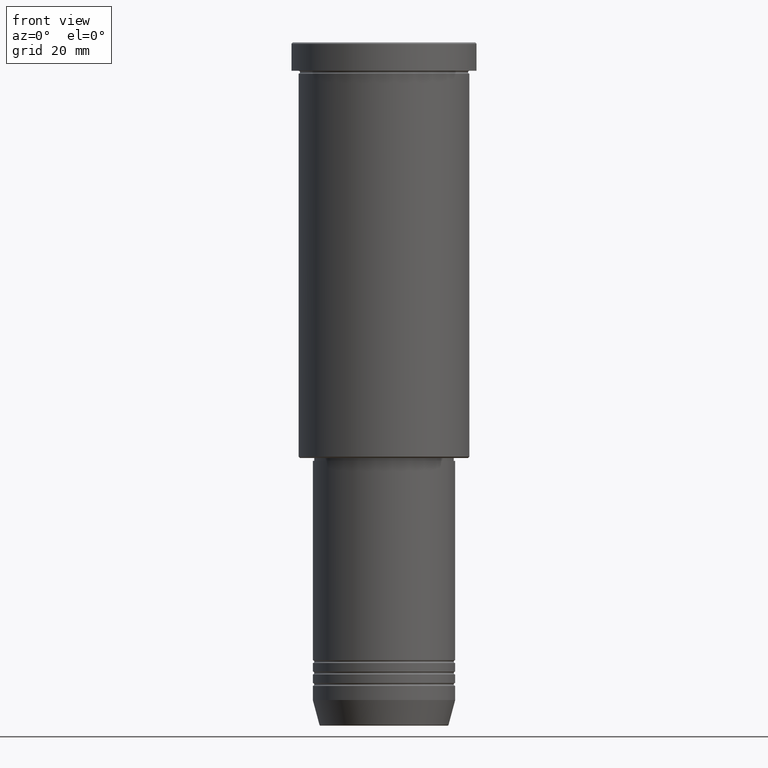
[diagram: clean part render]
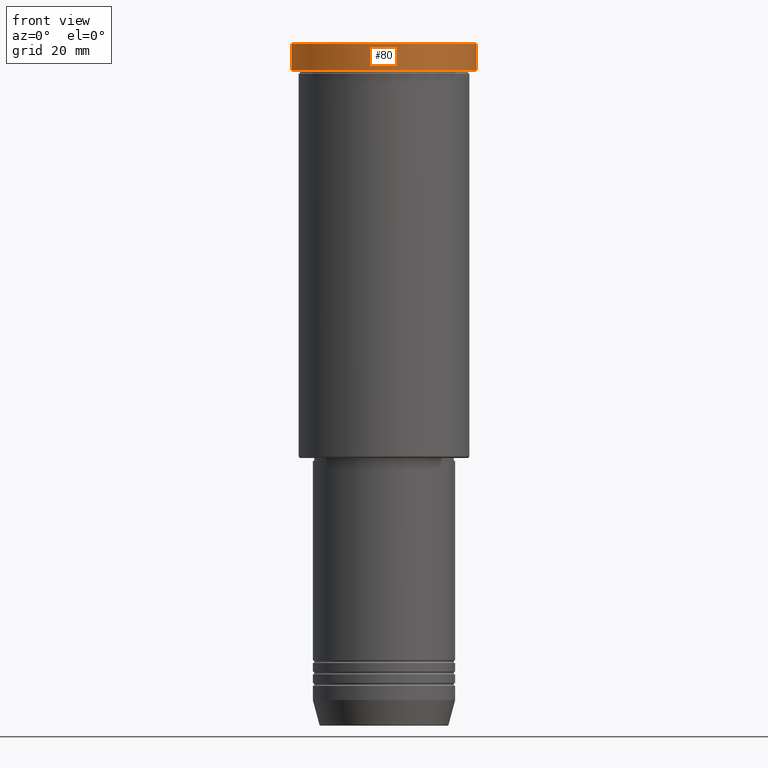
[diagram: same view with one face highlighted and labeled with its STEP entity id]
A machine part, front view. The second image highlights one B-rep face of the part: STEP entity #80.
In plain terms, the highlighted cylindrical surface (partial cylindrical patch) has radius 32.5 mm, axis along (-0, -0, 1).
Its self-contained STEP definition (entity closure, byte-faithful):
#40 = ORIENTED_EDGE ( 'NONE', *, *, #830, .T. ) ;
#45 = VERTEX_POINT ( 'NONE', #450 ) ;
#80 = ADVANCED_FACE ( 'NONE', ( #737 ), #179, .T. ) ;
#146 = CARTESIAN_POINT ( 'NONE',  ( 32.50000000000000000, 0.000000000000000000, -0.5000000000000004441 ) ) ;
#164 = DIRECTION ( 'NONE',  ( 0.000000000000000000, 0.000000000000000000, -1.000000000000000000 ) ) ;
#179 = CYLINDRICAL_SURFACE ( 'NONE', #834, 32.50000000000000000 ) ;
#229 = CIRCLE ( 'NONE', #583, 32.50000000000000000 ) ;
#244 = DIRECTION ( 'NONE',  ( 1.000000000000000000, 0.000000000000000000, 0.000000000000000000 ) ) ;
#262 = CARTESIAN_POINT ( 'NONE',  ( 0.000000000000000000, 0.000000000000000000, -0.5000000000000004441 ) ) ;
#331 = CIRCLE ( 'NONE', #880, 32.50000000000000000 ) ;
#350 = CARTESIAN_POINT ( 'NONE',  ( -32.50000000000000000, 3.980102097228898626E-15, 0.000000000000000000 ) ) ;
#428 = CARTESIAN_POINT ( 'NONE',  ( 0.000000000000000000, 0.000000000000000000, -9.999999999999992895 ) ) ;
#431 = DIRECTION ( 'NONE',  ( -0.000000000000000000, -0.000000000000000000, 1.000000000000000000 ) ) ;
#432 = DIRECTION ( 'NONE',  ( -0.000000000000000000, -0.000000000000000000, 1.000000000000000000 ) ) ;
#450 = CARTESIAN_POINT ( 'NONE',  ( 32.50000000000000000, 0.000000000000000000, -9.999999999999992895 ) ) ;
#489 = EDGE_CURVE ( 'NONE', #717, #1043, #331, .T. ) ;
#501 = EDGE_LOOP ( 'NONE', ( #637, #792, #40, #1014 ) ) ;
#515 = LINE ( 'NONE', #588, #1040 ) ;
#517 = VERTEX_POINT ( 'NONE', #624 ) ;
#535 = DIRECTION ( 'NONE',  ( -0.000000000000000000, -0.000000000000000000, 1.000000000000000000 ) ) ;
#550 = CARTESIAN_POINT ( 'NONE',  ( 0.000000000000000000, 0.000000000000000000, 0.000000000000000000 ) ) ;
#572 = CARTESIAN_POINT ( 'NONE',  ( -32.50000000000000000, 3.980102097228898626E-15, -0.5000000000000004441 ) ) ;
#583 = AXIS2_PLACEMENT_3D ( 'NONE', #428, #432, #1172 ) ;
#588 = CARTESIAN_POINT ( 'NONE',  ( 32.50000000000000000, 0.000000000000000000, 0.000000000000000000 ) ) ;
#624 = CARTESIAN_POINT ( 'NONE',  ( -32.50000000000000000, 3.980102097228898626E-15, -9.999999999999992895 ) ) ;
#637 = ORIENTED_EDGE ( 'NONE', *, *, #849, .F. ) ;
#717 = VERTEX_POINT ( 'NONE', #146 ) ;
#737 = FACE_OUTER_BOUND ( 'NONE', #501, .T. ) ;
#761 = VECTOR ( 'NONE', #535, 1000.000000000000000 ) ;
#792 = ORIENTED_EDGE ( 'NONE', *, *, #887, .T. ) ;
#830 = EDGE_CURVE ( 'NONE', #45, #717, #515, .T. ) ;
#834 = AXIS2_PLACEMENT_3D ( 'NONE', #550, #431, #244 ) ;
#849 = EDGE_CURVE ( 'NONE', #517, #1043, #893, .T. ) ;
#880 = AXIS2_PLACEMENT_3D ( 'NONE', #262, #164, #1085 ) ;
#887 = EDGE_CURVE ( 'NONE', #517, #45, #229, .T. ) ;
#889 = DIRECTION ( 'NONE',  ( -0.000000000000000000, -0.000000000000000000, 1.000000000000000000 ) ) ;
#893 = LINE ( 'NONE', #350, #761 ) ;
#1014 = ORIENTED_EDGE ( 'NONE', *, *, #489, .T. ) ;
#1040 = VECTOR ( 'NONE', #889, 1000.000000000000000 ) ;
#1043 = VERTEX_POINT ( 'NONE', #572 ) ;
#1085 = DIRECTION ( 'NONE',  ( 1.000000000000000000, 0.000000000000000000, 0.000000000000000000 ) ) ;
#1172 = DIRECTION ( 'NONE',  ( 1.000000000000000000, 0.000000000000000000, 0.000000000000000000 ) ) ;